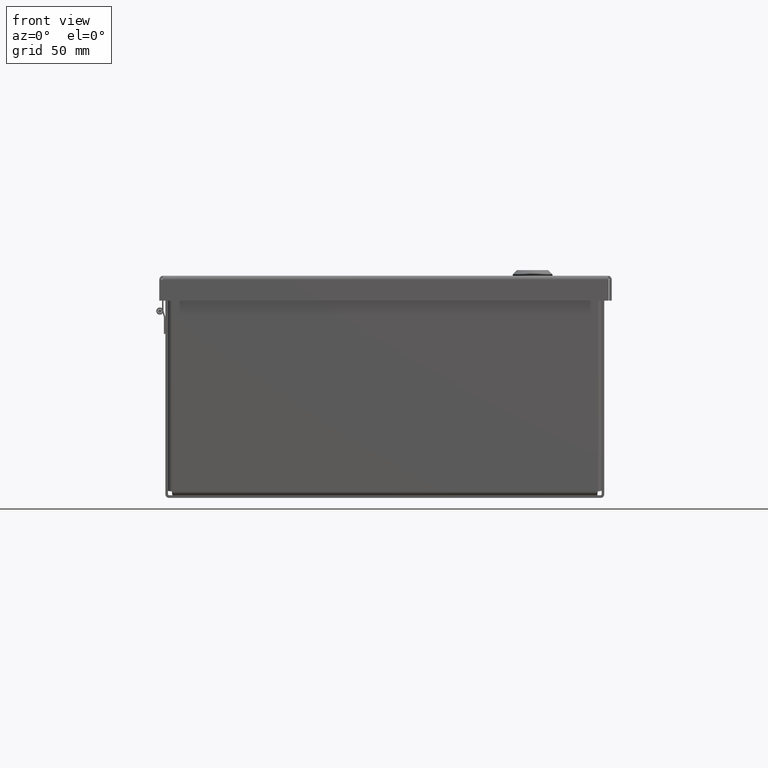
[diagram: clean part render]
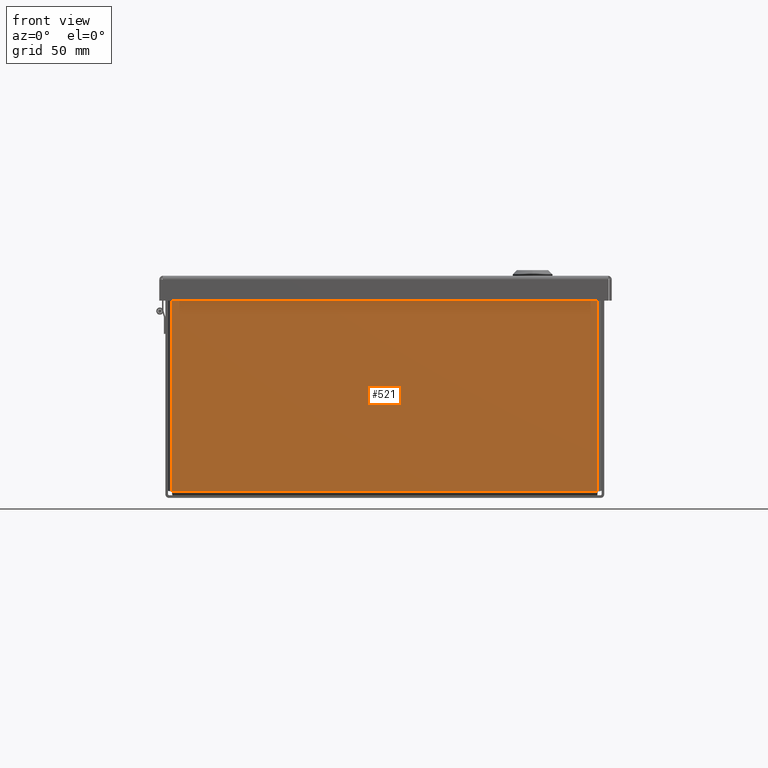
[diagram: same view with one face highlighted and labeled with its STEP entity id]
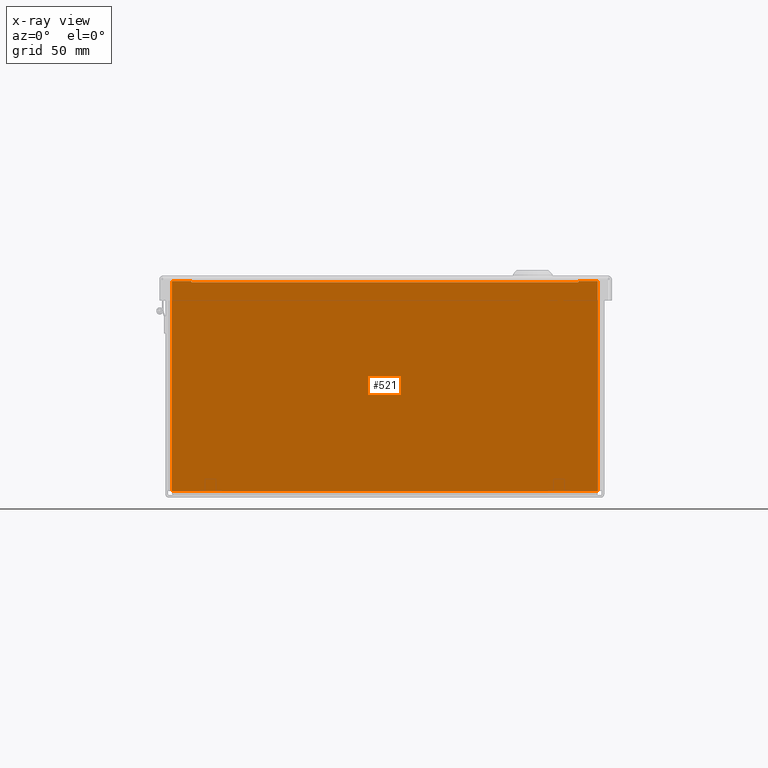
[diagram: x-ray of the same camera — body ghosted, the highlighted face saturated]
A machine part, front view. The second image highlights one B-rep face of the part: STEP entity #521.
The next image is the same camera in x-ray: the body ghosted, the highlighted face saturated — about 0% of this face is hidden behind the body in this view.
In plain terms, the highlighted planar face has unit normal (0, -1, -0).
Its self-contained STEP definition (entity closure, byte-faithful):
#134=CARTESIAN_POINT('',(-5.3425,2.925999999999999,0.074));
#135=VERTEX_POINT('',#134);
#143=CARTESIAN_POINT('',(5.342499999999998,2.925999999999999,0.074));
#144=VERTEX_POINT('',#143);
#145=CARTESIAN_POINT('',(5.342499999999998,2.925999999999999,0.074));
#146=DIRECTION('',(-1.0,0.0,0.0));
#147=VECTOR('',#146,10.684999999999997);
#148=LINE('',#145,#147);
#149=EDGE_CURVE('',#144,#135,#148,.T.);
#361=CARTESIAN_POINT('',(5.342499999999998,2.925799999999999,0.074));
#362=VERTEX_POINT('',#361);
#363=CARTESIAN_POINT('',(5.342499999999998,2.925799999999999,0.074));
#364=DIRECTION('',(0.0,1.0,0.0));
#365=VECTOR('',#364,0.0002);
#366=LINE('',#363,#365);
#367=EDGE_CURVE('',#362,#144,#366,.T.);
#391=CARTESIAN_POINT('',(5.342699999999998,2.957249999999999,0.074));
#392=VERTEX_POINT('',#391);
#393=CARTESIAN_POINT('',(5.342699999999998,2.925799999999999,0.074));
#394=VERTEX_POINT('',#393);
#395=CARTESIAN_POINT('',(5.342699999999998,2.957249999999999,0.074));
#396=DIRECTION('',(0.0,-1.0,0.0));
#397=VECTOR('',#396,0.03145);
#398=LINE('',#395,#397);
#399=EDGE_CURVE('',#392,#394,#398,.T.);
#431=CARTESIAN_POINT('',(5.342699999999997,2.925799999999999,0.074));
#432=DIRECTION('',(-1.0,0.0,0.0));
#433=VECTOR('',#432,0.0002);
#434=LINE('',#431,#433);
#435=EDGE_CURVE('',#394,#362,#434,.T.);
#448=CARTESIAN_POINT('',(-1.049030E-015,-1.748383E-016,0.074));
#449=DIRECTION('',(0.0,0.0,1.0));
#450=DIRECTION('',(1.0,0.0,0.0));
#451=AXIS2_PLACEMENT_3D('',#448,#449,#450);
#452=PLANE('',#451);
#453=ORIENTED_EDGE('',*,*,#399,.T.);
#454=ORIENTED_EDGE('',*,*,#435,.T.);
#455=ORIENTED_EDGE('',*,*,#367,.T.);
#456=ORIENTED_EDGE('',*,*,#149,.T.);
#457=CARTESIAN_POINT('',(-5.3425,2.925799999999999,0.074));
#458=VERTEX_POINT('',#457);
#459=CARTESIAN_POINT('',(-5.3425,2.925999999999999,0.074));
#460=DIRECTION('',(0.0,-1.0,0.0));
#461=VECTOR('',#460,0.0002);
#462=LINE('',#459,#461);
#463=EDGE_CURVE('',#135,#458,#462,.T.);
#464=ORIENTED_EDGE('',*,*,#463,.T.);
#465=CARTESIAN_POINT('',(-5.342700000000001,2.925799999999999,0.074));
#466=VERTEX_POINT('',#465);
#467=CARTESIAN_POINT('',(-5.3425,2.925799999999999,0.074));
#468=DIRECTION('',(-1.0,0.0,0.0));
#469=VECTOR('',#468,0.0002);
#470=LINE('',#467,#469);
#471=EDGE_CURVE('',#458,#466,#470,.T.);
#472=ORIENTED_EDGE('',*,*,#471,.T.);
#473=CARTESIAN_POINT('',(-5.342700000000001,2.957249999999999,0.074));
#474=VERTEX_POINT('',#473);
#475=CARTESIAN_POINT('',(-5.342700000000001,2.925799999999999,0.074));
#476=DIRECTION('',(0.0,1.0,0.0));
#477=VECTOR('',#476,0.03145);
#478=LINE('',#475,#477);
#479=EDGE_CURVE('',#466,#474,#478,.T.);
#480=ORIENTED_EDGE('',*,*,#479,.T.);
#481=CARTESIAN_POINT('',(-5.88325,2.957249999999999,0.074));
#482=VERTEX_POINT('',#481);
#483=CARTESIAN_POINT('',(-5.88325,2.957249999999999,0.074));
#484=DIRECTION('',(1.0,0.0,0.0));
#485=VECTOR('',#484,0.540550000000001);
#486=LINE('',#483,#485);
#487=EDGE_CURVE('',#482,#474,#486,.T.);
#488=ORIENTED_EDGE('',*,*,#487,.F.);
#489=CARTESIAN_POINT('',(-5.883249999999999,-2.851999999999999,0.074));
#490=VERTEX_POINT('',#489);
#491=CARTESIAN_POINT('',(-5.88325,2.957249999999999,0.074));
#492=DIRECTION('',(0.0,-1.0,0.0));
#493=VECTOR('',#492,5.809249999999999);
#494=LINE('',#491,#493);
#495=EDGE_CURVE('',#482,#490,#494,.T.);
#496=ORIENTED_EDGE('',*,*,#495,.T.);
#497=CARTESIAN_POINT('',(5.883249999999998,-2.851999999999998,0.074));
#498=VERTEX_POINT('',#497);
#499=CARTESIAN_POINT('',(-5.88325,-2.852,0.074));
#500=DIRECTION('',(1.0,0.0,0.0));
#501=VECTOR('',#500,11.766499999999997);
#502=LINE('',#499,#501);
#503=EDGE_CURVE('',#490,#498,#502,.T.);
#504=ORIENTED_EDGE('',*,*,#503,.T.);
#505=CARTESIAN_POINT('',(5.883249999999998,2.957249999999999,0.074));
#506=VERTEX_POINT('',#505);
#507=CARTESIAN_POINT('',(5.883249999999998,-2.851999999999998,0.074));
#508=DIRECTION('',(0.0,1.0,0.0));
#509=VECTOR('',#508,5.809249999999997);
#510=LINE('',#507,#509);
#511=EDGE_CURVE('',#498,#506,#510,.T.);
#512=ORIENTED_EDGE('',*,*,#511,.T.);
#513=CARTESIAN_POINT('',(5.342699999999998,2.957249999999999,0.074));
#514=DIRECTION('',(1.0,0.0,0.0));
#515=VECTOR('',#514,0.54055);
#516=LINE('',#513,#515);
#517=EDGE_CURVE('',#392,#506,#516,.T.);
#518=ORIENTED_EDGE('',*,*,#517,.F.);
#519=EDGE_LOOP('',(#453,#454,#455,#456,#464,#472,#480,#488,#496,#504,#512,#518));
#520=FACE_OUTER_BOUND('',#519,.T.);
#521=ADVANCED_FACE('',(#520),#452,.T.);